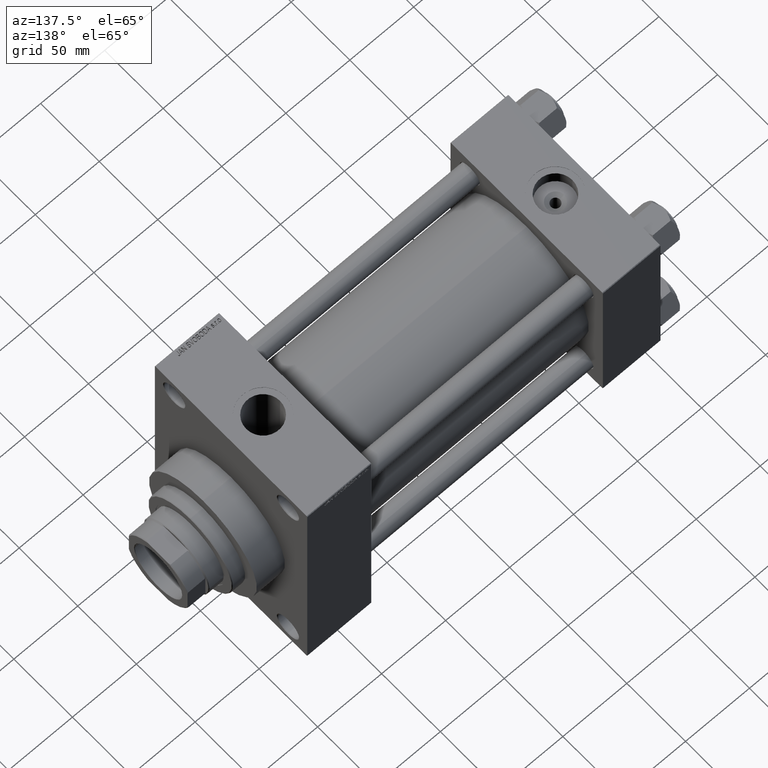
[diagram: clean part render]
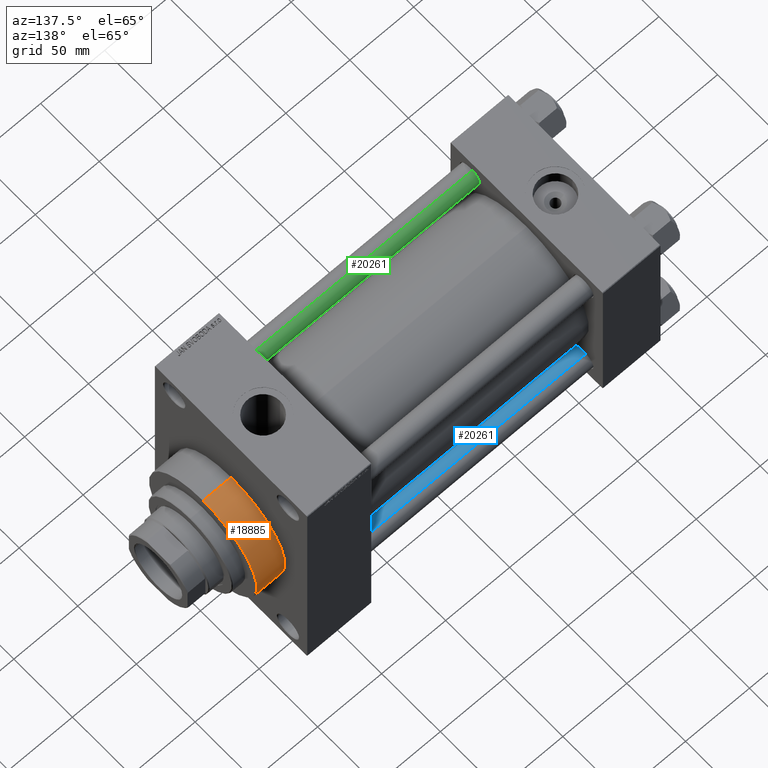
[diagram: same view with three faces highlighted in distinct colors, each labeled with its STEP entity id]
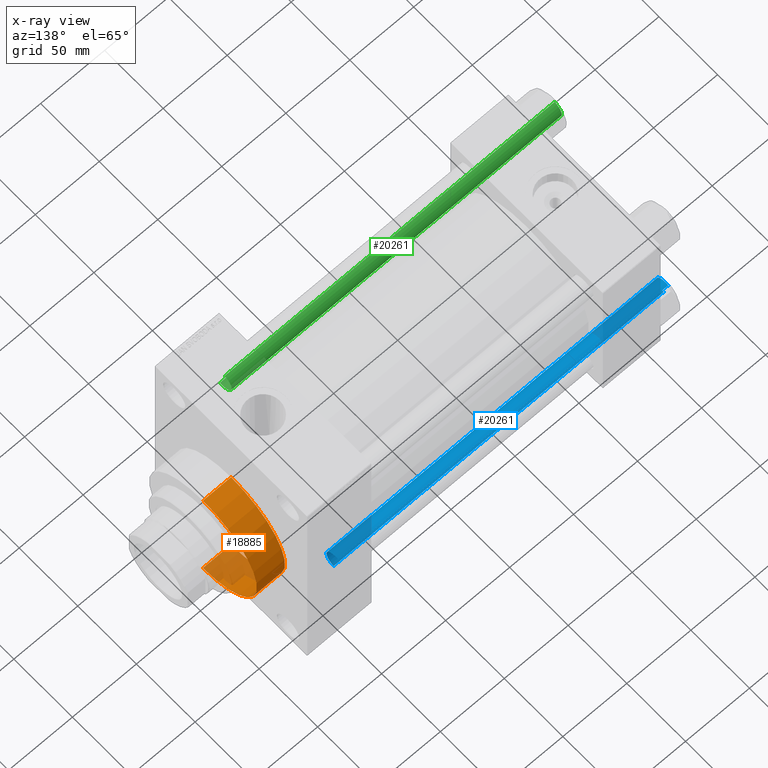
[diagram: x-ray of the same camera — body ghosted, the three highlighted faces saturated]
A machine part, auxiliary view with three faces highlighted in distinct colors.
The next image is the same camera in x-ray (body ghosted, the three faces saturated) — at least one of them is partly hidden behind the body in this view.
Their STEP definitions:

[orange] entity #18885 — the highlighted cylindrical surface (partial cylindrical patch) has radius 46 mm, axis along (-1, -0, -0).
#3746 = DIRECTION ( 'NONE',  ( 1.000000000000000000, 0.000000000000000000, 0.000000000000000000 ) ) ;
#6340 = DIRECTION ( 'NONE',  ( 0.000000000000000000, 0.000000000000000000, -1.000000000000000000 ) ) ;
#7463 = EDGE_CURVE ( 'NONE', #8956, #25826, #47435, .T. ) ;
#8956 = VERTEX_POINT ( 'NONE', #37240 ) ;
#9071 = DIRECTION ( 'NONE',  ( -1.000000000000000000, -0.000000000000000000, -0.000000000000000000 ) ) ;
#9307 = CARTESIAN_POINT ( 'NONE',  ( 298.0000000000000000, 0.000000000000000000, 0.000000000000000000 ) ) ;
#9317 = ORIENTED_EDGE ( 'NONE', *, *, #17387, .F. ) ;
#11748 = CYLINDRICAL_SURFACE ( 'NONE', #43286, 46.00000000000000000 ) ;
#12220 = DIRECTION ( 'NONE',  ( 0.000000000000000000, 0.000000000000000000, 1.000000000000000000 ) ) ;
#13310 = CIRCLE ( 'NONE', #40303, 46.00000000000000000 ) ;
#17387 = EDGE_CURVE ( 'NONE', #42565, #8956, #37827, .T. ) ;
#18469 = EDGE_CURVE ( 'NONE', #42565, #42714, #41808, .T. ) ;
#18885 = ADVANCED_FACE ( 'NONE', ( #44848 ), #11748, .T. ) ;
#20118 = ORIENTED_EDGE ( 'NONE', *, *, #26993, .T. ) ;
#20814 = CARTESIAN_POINT ( 'NONE',  ( 298.0000000000000000, 0.000000000000000000, 0.000000000000000000 ) ) ;
#21489 = DIRECTION ( 'NONE',  ( -1.000000000000000000, -0.000000000000000000, -0.000000000000000000 ) ) ;
#23812 = CARTESIAN_POINT ( 'NONE',  ( 275.9999999999999432, 0.000000000000000000, 46.00000000000000000 ) ) ;
#25273 = DIRECTION ( 'NONE',  ( 0.000000000000000000, 0.000000000000000000, -1.000000000000000000 ) ) ;
#25415 = DIRECTION ( 'NONE',  ( 1.000000000000000000, 0.000000000000000000, 0.000000000000000000 ) ) ;
#25826 = VERTEX_POINT ( 'NONE', #23812 ) ;
#26993 = EDGE_CURVE ( 'NONE', #42714, #25826, #13310, .T. ) ;
#29103 = CARTESIAN_POINT ( 'NONE',  ( 298.0000000000000000, 0.000000000000000000, 46.00000000000000000 ) ) ;
#33225 = ORIENTED_EDGE ( 'NONE', *, *, #18469, .T. ) ;
#33249 = VECTOR ( 'NONE', #21489, 1000.000000000000000 ) ;
#33524 = EDGE_LOOP ( 'NONE', ( #9317, #33225, #20118, #35320 ) ) ;
#35264 = CARTESIAN_POINT ( 'NONE',  ( 275.9999999999999432, 5.633375276077824704E-15, -46.00000000000000000 ) ) ;
#35320 = ORIENTED_EDGE ( 'NONE', *, *, #7463, .F. ) ;
#36854 = CARTESIAN_POINT ( 'NONE',  ( 275.9999999999999432, 0.000000000000000000, 0.000000000000000000 ) ) ;
#37240 = CARTESIAN_POINT ( 'NONE',  ( 298.0000000000000000, 0.000000000000000000, 46.00000000000000000 ) ) ;
#37827 = CIRCLE ( 'NONE', #40140, 46.00000000000000000 ) ;
#40140 = AXIS2_PLACEMENT_3D ( 'NONE', #20814, #25415, #6340 ) ;
#40303 = AXIS2_PLACEMENT_3D ( 'NONE', #36854, #3746, #25273 ) ;
#41808 = LINE ( 'NONE', #43012, #33249 ) ;
#42565 = VERTEX_POINT ( 'NONE', #44704 ) ;
#42714 = VERTEX_POINT ( 'NONE', #35264 ) ;
#43012 = CARTESIAN_POINT ( 'NONE',  ( 298.0000000000000000, 5.633375276077824704E-15, -46.00000000000000000 ) ) ;
#43286 = AXIS2_PLACEMENT_3D ( 'NONE', #9307, #9071, #12220 ) ;
#43833 = DIRECTION ( 'NONE',  ( -1.000000000000000000, -0.000000000000000000, -0.000000000000000000 ) ) ;
#44054 = VECTOR ( 'NONE', #43833, 1000.000000000000000 ) ;
#44704 = CARTESIAN_POINT ( 'NONE',  ( 298.0000000000000000, 5.633375276077824704E-15, -46.00000000000000000 ) ) ;
#44848 = FACE_OUTER_BOUND ( 'NONE', #33524, .T. ) ;
#47435 = LINE ( 'NONE', #29103, #44054 ) ;

[blue] entity #20261 — the highlighted cylindrical surface (edge-blend (fillet) strip) has radius 8 mm, axis along (1, -0, 0).
#1137 = EDGE_CURVE ( 'NONE', #26635, #43503, #10675, .T. ) ;
#2681 = LINE ( 'NONE', #34822, #5816 ) ;
#2900 = CARTESIAN_POINT ( 'NONE',  ( -8.000000000000000000, 0.000000000000000000, 258.4999999999999432 ) ) ;
#3700 = CARTESIAN_POINT ( 'NONE',  ( 8.000000000000000000, 9.797174393178825657E-16, 0.4999999999999449329 ) ) ;
#3963 = AXIS2_PLACEMENT_3D ( 'NONE', #22833, #34192, #4952 ) ;
#4813 = LINE ( 'NONE', #37208, #17397 ) ;
#4881 = ORIENTED_EDGE ( 'NONE', *, *, #37636, .T. ) ;
#4952 = DIRECTION ( 'NONE',  ( -1.000000000000000000, 0.000000000000000000, 0.000000000000000000 ) ) ;
#5592 = CARTESIAN_POINT ( 'NONE',  ( 8.000000000000000000, 9.797174393178825657E-16, 258.4999999999999432 ) ) ;
#5816 = VECTOR ( 'NONE', #9196, 1000.000000000000000 ) ;
#7556 = DIRECTION ( 'NONE',  ( -0.000000000000000000, -0.000000000000000000, 1.000000000000000000 ) ) ;
#9196 = DIRECTION ( 'NONE',  ( -0.000000000000000000, -0.000000000000000000, -1.000000000000000000 ) ) ;
#10675 = CIRCLE ( 'NONE', #21461, 8.000000000000000000 ) ;
#11332 = ORIENTED_EDGE ( 'NONE', *, *, #1137, .T. ) ;
#11774 = CARTESIAN_POINT ( 'NONE',  ( -8.000000000000000000, 0.000000000000000000, 0.4999999999999449329 ) ) ;
#12211 = ORIENTED_EDGE ( 'NONE', *, *, #14981, .T. ) ;
#12266 = AXIS2_PLACEMENT_3D ( 'NONE', #25934, #7556, #23015 ) ;
#13899 = EDGE_LOOP ( 'NONE', ( #29350, #11332, #4881, #12211 ) ) ;
#14981 = EDGE_CURVE ( 'NONE', #29927, #21852, #22315, .T. ) ;
#17397 = VECTOR ( 'NONE', #30672, 1000.000000000000000 ) ;
#20261 = ADVANCED_FACE ( 'NONE', ( #37809 ), #38041, .T. ) ;
#21461 = AXIS2_PLACEMENT_3D ( 'NONE', #45131, #30888, #34270 ) ;
#21852 = VERTEX_POINT ( 'NONE', #3700 ) ;
#22315 = CIRCLE ( 'NONE', #12266, 8.000000000000000000 ) ;
#22833 = CARTESIAN_POINT ( 'NONE',  ( 0.000000000000000000, 0.000000000000000000, 259.0000000000000000 ) ) ;
#23015 = DIRECTION ( 'NONE',  ( 1.000000000000000000, 0.000000000000000000, 0.000000000000000000 ) ) ;
#25934 = CARTESIAN_POINT ( 'NONE',  ( 0.000000000000000000, 0.000000000000000000, 0.4999999999999449329 ) ) ;
#26635 = VERTEX_POINT ( 'NONE', #5592 ) ;
#29350 = ORIENTED_EDGE ( 'NONE', *, *, #37403, .F. ) ;
#29927 = VERTEX_POINT ( 'NONE', #11774 ) ;
#30672 = DIRECTION ( 'NONE',  ( -0.000000000000000000, -0.000000000000000000, -1.000000000000000000 ) ) ;
#30888 = DIRECTION ( 'NONE',  ( 0.000000000000000000, 0.000000000000000000, -1.000000000000000000 ) ) ;
#34192 = DIRECTION ( 'NONE',  ( -0.000000000000000000, -0.000000000000000000, -1.000000000000000000 ) ) ;
#34270 = DIRECTION ( 'NONE',  ( 1.000000000000000000, 0.000000000000000000, 0.000000000000000000 ) ) ;
#34822 = CARTESIAN_POINT ( 'NONE',  ( 8.000000000000000000, 9.797174393178825657E-16, 259.0000000000000000 ) ) ;
#37208 = CARTESIAN_POINT ( 'NONE',  ( -8.000000000000000000, 0.000000000000000000, 259.0000000000000000 ) ) ;
#37403 = EDGE_CURVE ( 'NONE', #26635, #21852, #2681, .T. ) ;
#37636 = EDGE_CURVE ( 'NONE', #43503, #29927, #4813, .T. ) ;
#37809 = FACE_OUTER_BOUND ( 'NONE', #13899, .T. ) ;
#38041 = CYLINDRICAL_SURFACE ( 'NONE', #3963, 8.000000000000000000 ) ;
#43503 = VERTEX_POINT ( 'NONE', #2900 ) ;
#45131 = CARTESIAN_POINT ( 'NONE',  ( 0.000000000000000000, 0.000000000000000000, 258.4999999999999432 ) ) ;

[green] entity #20261 — the highlighted cylindrical surface (edge-blend (fillet) strip) has radius 8 mm, axis along (1, 0, 0).
#1137 = EDGE_CURVE ( 'NONE', #26635, #43503, #10675, .T. ) ;
#2681 = LINE ( 'NONE', #34822, #5816 ) ;
#2900 = CARTESIAN_POINT ( 'NONE',  ( -8.000000000000000000, 0.000000000000000000, 258.4999999999999432 ) ) ;
#3700 = CARTESIAN_POINT ( 'NONE',  ( 8.000000000000000000, 9.797174393178825657E-16, 0.4999999999999449329 ) ) ;
#3963 = AXIS2_PLACEMENT_3D ( 'NONE', #22833, #34192, #4952 ) ;
#4813 = LINE ( 'NONE', #37208, #17397 ) ;
#4881 = ORIENTED_EDGE ( 'NONE', *, *, #37636, .T. ) ;
#4952 = DIRECTION ( 'NONE',  ( -1.000000000000000000, 0.000000000000000000, 0.000000000000000000 ) ) ;
#5592 = CARTESIAN_POINT ( 'NONE',  ( 8.000000000000000000, 9.797174393178825657E-16, 258.4999999999999432 ) ) ;
#5816 = VECTOR ( 'NONE', #9196, 1000.000000000000000 ) ;
#7556 = DIRECTION ( 'NONE',  ( -0.000000000000000000, -0.000000000000000000, 1.000000000000000000 ) ) ;
#9196 = DIRECTION ( 'NONE',  ( -0.000000000000000000, -0.000000000000000000, -1.000000000000000000 ) ) ;
#10675 = CIRCLE ( 'NONE', #21461, 8.000000000000000000 ) ;
#11332 = ORIENTED_EDGE ( 'NONE', *, *, #1137, .T. ) ;
#11774 = CARTESIAN_POINT ( 'NONE',  ( -8.000000000000000000, 0.000000000000000000, 0.4999999999999449329 ) ) ;
#12211 = ORIENTED_EDGE ( 'NONE', *, *, #14981, .T. ) ;
#12266 = AXIS2_PLACEMENT_3D ( 'NONE', #25934, #7556, #23015 ) ;
#13899 = EDGE_LOOP ( 'NONE', ( #29350, #11332, #4881, #12211 ) ) ;
#14981 = EDGE_CURVE ( 'NONE', #29927, #21852, #22315, .T. ) ;
#17397 = VECTOR ( 'NONE', #30672, 1000.000000000000000 ) ;
#20261 = ADVANCED_FACE ( 'NONE', ( #37809 ), #38041, .T. ) ;
#21461 = AXIS2_PLACEMENT_3D ( 'NONE', #45131, #30888, #34270 ) ;
#21852 = VERTEX_POINT ( 'NONE', #3700 ) ;
#22315 = CIRCLE ( 'NONE', #12266, 8.000000000000000000 ) ;
#22833 = CARTESIAN_POINT ( 'NONE',  ( 0.000000000000000000, 0.000000000000000000, 259.0000000000000000 ) ) ;
#23015 = DIRECTION ( 'NONE',  ( 1.000000000000000000, 0.000000000000000000, 0.000000000000000000 ) ) ;
#25934 = CARTESIAN_POINT ( 'NONE',  ( 0.000000000000000000, 0.000000000000000000, 0.4999999999999449329 ) ) ;
#26635 = VERTEX_POINT ( 'NONE', #5592 ) ;
#29350 = ORIENTED_EDGE ( 'NONE', *, *, #37403, .F. ) ;
#29927 = VERTEX_POINT ( 'NONE', #11774 ) ;
#30672 = DIRECTION ( 'NONE',  ( -0.000000000000000000, -0.000000000000000000, -1.000000000000000000 ) ) ;
#30888 = DIRECTION ( 'NONE',  ( 0.000000000000000000, 0.000000000000000000, -1.000000000000000000 ) ) ;
#34192 = DIRECTION ( 'NONE',  ( -0.000000000000000000, -0.000000000000000000, -1.000000000000000000 ) ) ;
#34270 = DIRECTION ( 'NONE',  ( 1.000000000000000000, 0.000000000000000000, 0.000000000000000000 ) ) ;
#34822 = CARTESIAN_POINT ( 'NONE',  ( 8.000000000000000000, 9.797174393178825657E-16, 259.0000000000000000 ) ) ;
#37208 = CARTESIAN_POINT ( 'NONE',  ( -8.000000000000000000, 0.000000000000000000, 259.0000000000000000 ) ) ;
#37403 = EDGE_CURVE ( 'NONE', #26635, #21852, #2681, .T. ) ;
#37636 = EDGE_CURVE ( 'NONE', #43503, #29927, #4813, .T. ) ;
#37809 = FACE_OUTER_BOUND ( 'NONE', #13899, .T. ) ;
#38041 = CYLINDRICAL_SURFACE ( 'NONE', #3963, 8.000000000000000000 ) ;
#43503 = VERTEX_POINT ( 'NONE', #2900 ) ;
#45131 = CARTESIAN_POINT ( 'NONE',  ( 0.000000000000000000, 0.000000000000000000, 258.4999999999999432 ) ) ;